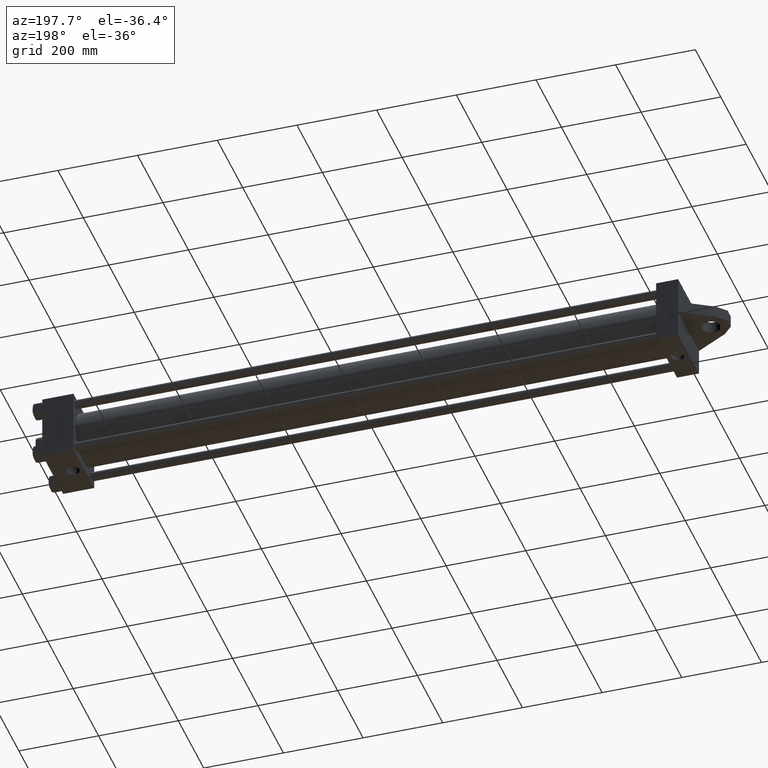
[diagram: clean part render]
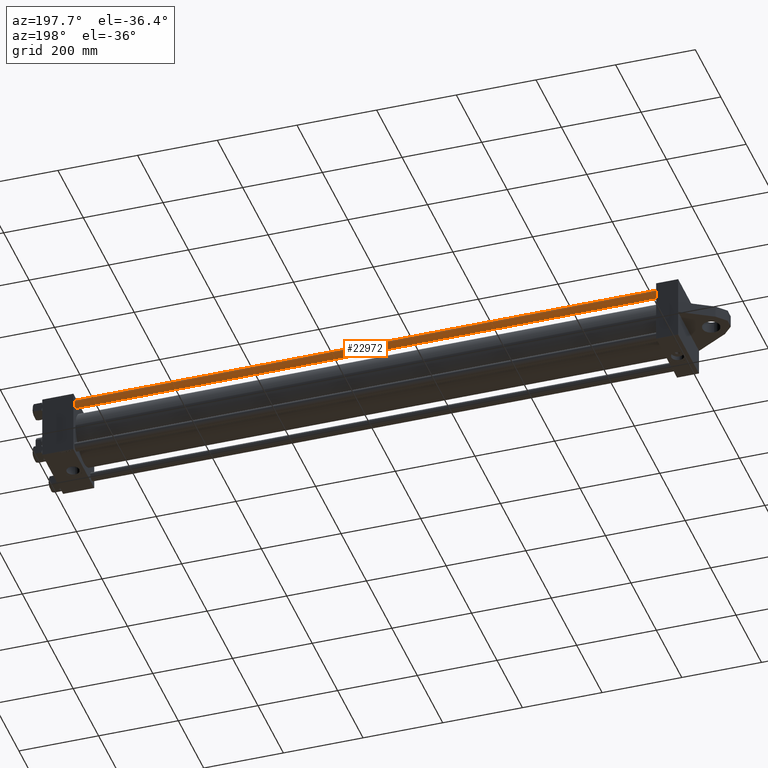
[diagram: same view with one face highlighted and labeled with its STEP entity id]
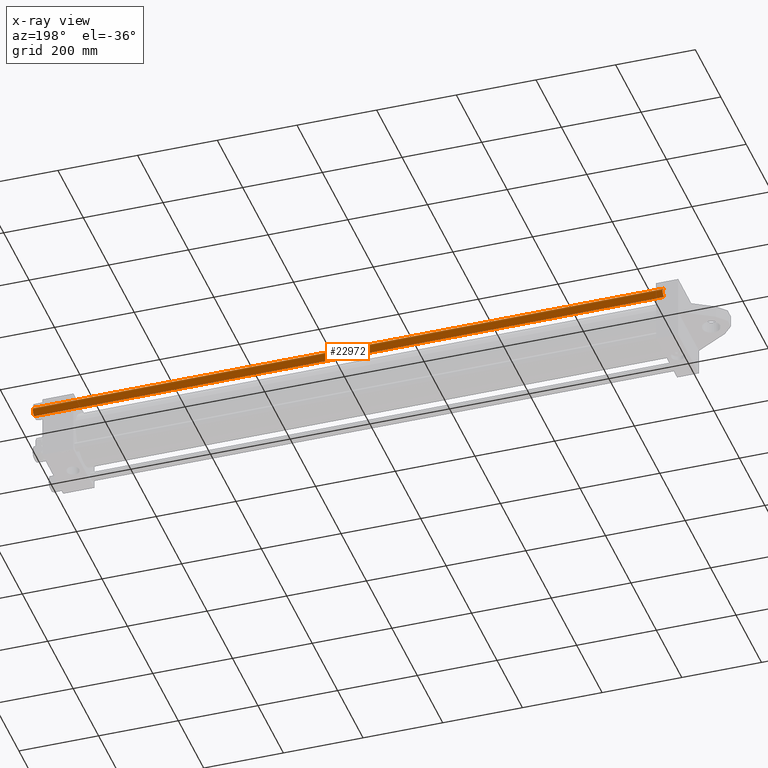
[diagram: x-ray of the same camera — body ghosted, the highlighted face saturated]
A machine part, auxiliary view. The second image highlights one B-rep face of the part: STEP entity #22972.
The next image is the same camera in x-ray: the body ghosted, the highlighted face saturated — about 0% of this face is hidden behind the body in this view.
In plain terms, the highlighted cylindrical surface (edge-blend (fillet) strip) has radius 11 mm, axis along (-1, 0, -0).
Its self-contained STEP definition (entity closure, byte-faithful):
#588 = CARTESIAN_POINT ( 'NONE',  ( 0.000000000000000000, 0.000000000000000000, 0.4999999999999449329 ) ) ;
#945 = CARTESIAN_POINT ( 'NONE',  ( -11.00000000000000000, 0.000000000000000000, 0.4999999999999449329 ) ) ;
#1264 = CARTESIAN_POINT ( 'NONE',  ( 0.000000000000000000, 0.000000000000000000, 1581.500000000000000 ) ) ;
#3898 = CYLINDRICAL_SURFACE ( 'NONE', #33714, 11.00000000000000000 ) ;
#4050 = CARTESIAN_POINT ( 'NONE',  ( -11.00000000000000000, 0.000000000000000000, 1581.500000000000000 ) ) ;
#4318 = DIRECTION ( 'NONE',  ( 1.000000000000000000, 0.000000000000000000, 0.000000000000000000 ) ) ;
#6485 = AXIS2_PLACEMENT_3D ( 'NONE', #588, #11186, #22253 ) ;
#6681 = ORIENTED_EDGE ( 'NONE', *, *, #24053, .T. ) ;
#9374 = ORIENTED_EDGE ( 'NONE', *, *, #12025, .T. ) ;
#9568 = ORIENTED_EDGE ( 'NONE', *, *, #22058, .T. ) ;
#11186 = DIRECTION ( 'NONE',  ( -0.000000000000000000, -0.000000000000000000, 1.000000000000000000 ) ) ;
#12025 = EDGE_CURVE ( 'NONE', #20092, #24883, #12205, .T. ) ;
#12205 = CIRCLE ( 'NONE', #14523, 11.00000000000000000 ) ;
#13207 = LINE ( 'NONE', #31365, #42779 ) ;
#13489 = CARTESIAN_POINT ( 'NONE',  ( 11.00000000000000000, 1.347111479062088405E-15, 1581.500000000000000 ) ) ;
#14523 = AXIS2_PLACEMENT_3D ( 'NONE', #1264, #40133, #4318 ) ;
#14778 = DIRECTION ( 'NONE',  ( -0.000000000000000000, -0.000000000000000000, -1.000000000000000000 ) ) ;
#18017 = CARTESIAN_POINT ( 'NONE',  ( 0.000000000000000000, 0.000000000000000000, 1582.000000000000000 ) ) ;
#18257 = DIRECTION ( 'NONE',  ( -0.000000000000000000, -0.000000000000000000, -1.000000000000000000 ) ) ;
#20092 = VERTEX_POINT ( 'NONE', #4050 ) ;
#20360 = EDGE_CURVE ( 'NONE', #20092, #31186, #35811, .T. ) ;
#21453 = VECTOR ( 'NONE', #14778, 1000.000000000000000 ) ;
#21792 = FACE_OUTER_BOUND ( 'NONE', #43820, .T. ) ;
#22058 = EDGE_CURVE ( 'NONE', #38211, #31186, #46341, .T. ) ;
#22253 = DIRECTION ( 'NONE',  ( 1.000000000000000000, 0.000000000000000000, 0.000000000000000000 ) ) ;
#22972 = ADVANCED_FACE ( 'NONE', ( #21792 ), #3898, .T. ) ;
#24053 = EDGE_CURVE ( 'NONE', #24883, #38211, #13207, .T. ) ;
#24634 = DIRECTION ( 'NONE',  ( -1.000000000000000000, 0.000000000000000000, 0.000000000000000000 ) ) ;
#24883 = VERTEX_POINT ( 'NONE', #13489 ) ;
#25235 = ORIENTED_EDGE ( 'NONE', *, *, #20360, .F. ) ;
#27584 = DIRECTION ( 'NONE',  ( -0.000000000000000000, -0.000000000000000000, -1.000000000000000000 ) ) ;
#31186 = VERTEX_POINT ( 'NONE', #945 ) ;
#31365 = CARTESIAN_POINT ( 'NONE',  ( 11.00000000000000000, 1.347111479062088405E-15, 1582.000000000000000 ) ) ;
#33714 = AXIS2_PLACEMENT_3D ( 'NONE', #18017, #18257, #24634 ) ;
#35184 = CARTESIAN_POINT ( 'NONE',  ( 11.00000000000000000, 1.347111479062088405E-15, 0.4999999999999449329 ) ) ;
#35811 = LINE ( 'NONE', #43573, #21453 ) ;
#38211 = VERTEX_POINT ( 'NONE', #35184 ) ;
#40133 = DIRECTION ( 'NONE',  ( 0.000000000000000000, 0.000000000000000000, -1.000000000000000000 ) ) ;
#42779 = VECTOR ( 'NONE', #27584, 1000.000000000000000 ) ;
#43573 = CARTESIAN_POINT ( 'NONE',  ( -11.00000000000000000, 0.000000000000000000, 1582.000000000000000 ) ) ;
#43820 = EDGE_LOOP ( 'NONE', ( #9374, #6681, #9568, #25235 ) ) ;
#46341 = CIRCLE ( 'NONE', #6485, 11.00000000000000000 ) ;